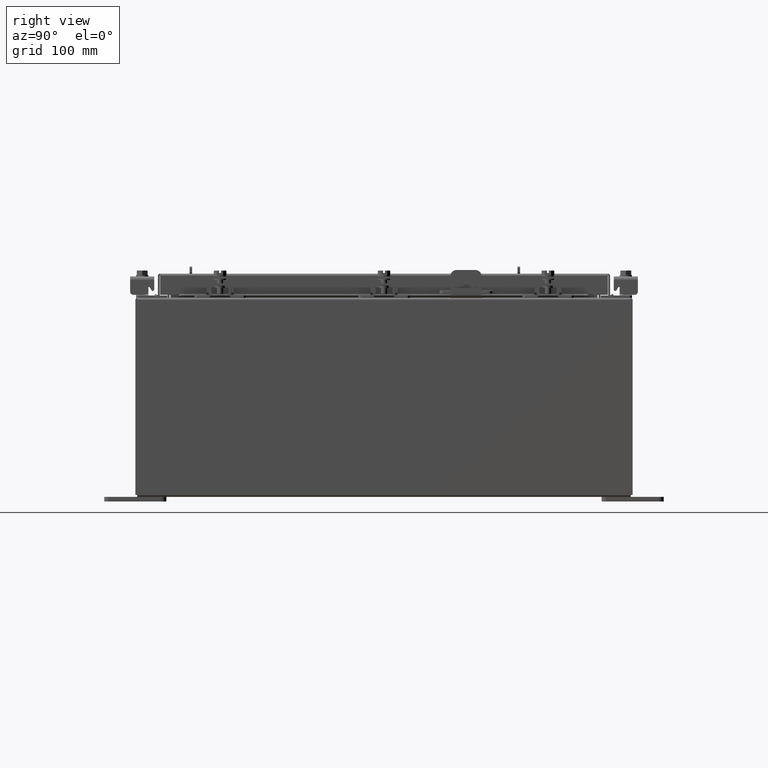
[diagram: clean part render]
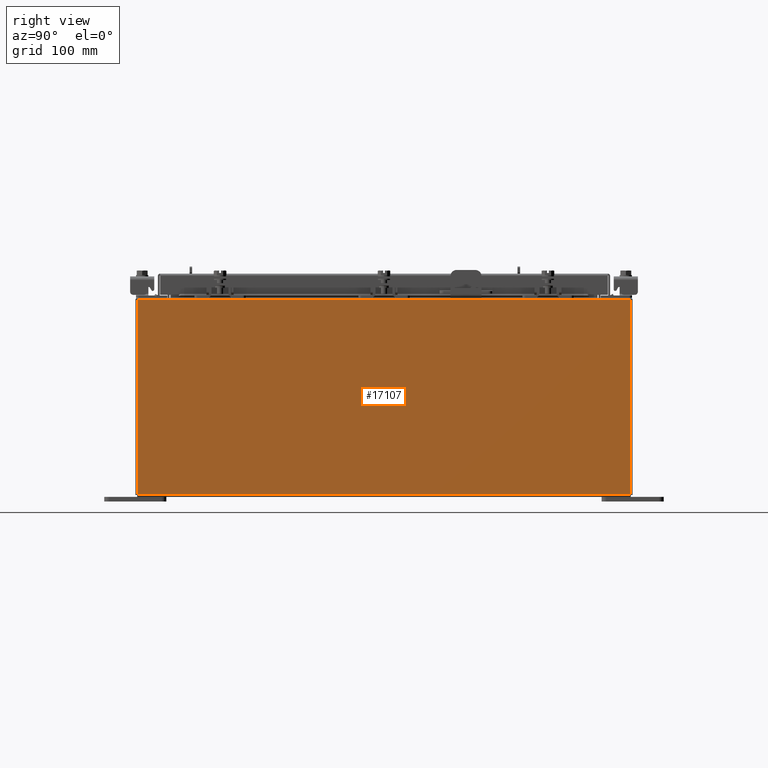
[diagram: same view with one face highlighted and labeled with its STEP entity id]
A machine part, right view. The second image highlights one B-rep face of the part: STEP entity #17107.
In plain terms, the highlighted planar face has unit normal (-1, 0, 0).
Its self-contained STEP definition (entity closure, byte-faithful):
#396 = EDGE_CURVE ( 'NONE', #8481, #12682, #7474, .T. ) ;
#459 = CARTESIAN_POINT ( 'NONE',  ( 8.000000000000030200, 9.925299999999991100, 7.837599999999999200 ) ) ;
#965 = LINE ( 'NONE', #9258, #19509 ) ;
#1024 = ORIENTED_EDGE ( 'NONE', *, *, #8754, .T. ) ;
#1352 = ORIENTED_EDGE ( 'NONE', *, *, #9361, .T. ) ;
#1464 = VECTOR ( 'NONE', #20088, 39.37007874015748100 ) ;
#2739 = CARTESIAN_POINT ( 'NONE',  ( 8.000000000000001800, 0.0000000000000000000, -2.783678421777468900E-014 ) ) ;
#3022 = CARTESIAN_POINT ( 'NONE',  ( 8.000000000000001800, -9.925300000000001800, 0.01299999999999984700 ) ) ;
#4503 = DIRECTION ( 'NONE',  ( 3.446996320220386900E-015, 0.0000000000000000000, 1.000000000000000000 ) ) ;
#4511 = ORIENTED_EDGE ( 'NONE', *, *, #16422, .T. ) ;
#5889 = AXIS2_PLACEMENT_3D ( 'NONE', #2739, #14912, #4503 ) ;
#6045 = CARTESIAN_POINT ( 'NONE',  ( 8.000000000000001800, -9.925300000000001800, -2.783678421777468900E-014 ) ) ;
#7474 = LINE ( 'NONE', #3022, #17867 ) ;
#8481 = VERTEX_POINT ( 'NONE', #10589 ) ;
#8754 = EDGE_CURVE ( 'NONE', #14510, #12682, #11335, .T. ) ;
#8776 = DIRECTION ( 'NONE',  ( -0.0000000000000000000, -1.000000000000000000, -0.0000000000000000000 ) ) ;
#8952 = EDGE_LOOP ( 'NONE', ( #1352, #1024, #18990, #4511 ) ) ;
#9258 = CARTESIAN_POINT ( 'NONE',  ( 8.000000000000030200, 9.925299999999992900, 7.837599999999999200 ) ) ;
#9361 = EDGE_CURVE ( 'NONE', #14365, #14510, #965, .T. ) ;
#10135 = LINE ( 'NONE', #14830, #1464 ) ;
#10589 = CARTESIAN_POINT ( 'NONE',  ( 8.000000000000001800, 9.925299999999996500, 0.01299999999999984700 ) ) ;
#10767 = VECTOR ( 'NONE', #18261, 39.37007874015748100 ) ;
#11335 = LINE ( 'NONE', #6045, #10767 ) ;
#12682 = VERTEX_POINT ( 'NONE', #17852 ) ;
#14365 = VERTEX_POINT ( 'NONE', #459 ) ;
#14510 = VERTEX_POINT ( 'NONE', #14921 ) ;
#14830 = CARTESIAN_POINT ( 'NONE',  ( 8.000000000000001800, 9.925299999999998200, -2.783678421777468900E-014 ) ) ;
#14840 = PLANE ( 'NONE',  #5889 ) ;
#14912 = DIRECTION ( 'NONE',  ( -1.000000000000000000, 0.0000000000000000000, 3.446996320220386900E-015 ) ) ;
#14921 = CARTESIAN_POINT ( 'NONE',  ( 8.000000000000030200, -9.925300000000001800, 7.837599999999999200 ) ) ;
#16422 = EDGE_CURVE ( 'NONE', #8481, #14365, #10135, .T. ) ;
#17107 = ADVANCED_FACE ( 'NONE', ( #18352 ), #14840, .F. ) ;
#17852 = CARTESIAN_POINT ( 'NONE',  ( 8.000000000000001800, -9.925300000000001800, 0.01299999999999984800 ) ) ;
#17867 = VECTOR ( 'NONE', #8776, 39.37007874015748100 ) ;
#18261 = DIRECTION ( 'NONE',  ( -3.446996320220387700E-015, 0.0000000000000000000, -1.000000000000000000 ) ) ;
#18352 = FACE_OUTER_BOUND ( 'NONE', #8952, .T. ) ;
#18990 = ORIENTED_EDGE ( 'NONE', *, *, #396, .F. ) ;
#19509 = VECTOR ( 'NONE', #21438, 39.37007874015748100 ) ;
#20088 = DIRECTION ( 'NONE',  ( 3.446996320220387700E-015, 0.0000000000000000000, 1.000000000000000000 ) ) ;
#21438 = DIRECTION ( 'NONE',  ( -0.0000000000000000000, -1.000000000000000000, -0.0000000000000000000 ) ) ;